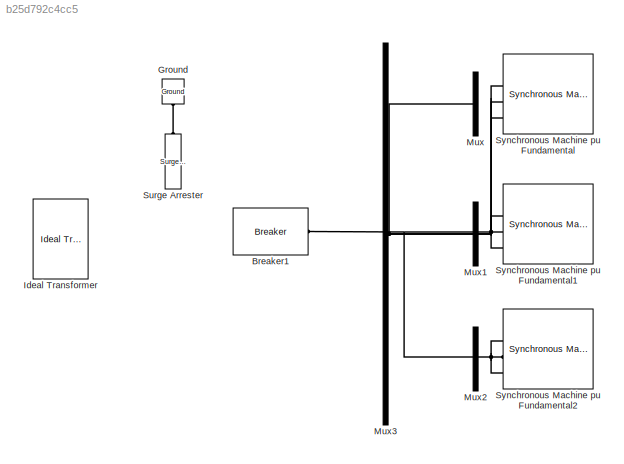
MODEL slx_b25d792c4cc5
KIND model
BLOCK [Reference] Breaker1  REF=powerlib/Elements/Breaker
  BreakerResistance = 0.01
  External = on
  InitialState = 0
  Measurements = None
  MoreParameters = off
  NoBreakLoop = off
  Ports = [1, 0, 0, 0, 0, 1, 1]
  SnubberCapacitance = inf
  SnubberResistance = 1e6
  SourceBlock = powerlib/Elements/Breaker
  SourceType = Breaker
  SwitchingTimes = [ 1/60  5/60 ]
BLOCK [Reference] Ground  REF=powerlib/Elements/Ground
  LConnTagsString = a
  Ports = [0, 0, 0, 0, 0, 1]
  SourceBlock = powerlib/Elements/Ground
  SourceType = Ground
BLOCK [Reference] Ideal Transformer  REF=fl_lib/Electrical/Electrical Elements/Ideal Transformer
  ClassName = ideal_transformer
  ComponentPath = foundation.electrical.elements.ideal_transformer
  ComponentVariantNames = ideal_transformer
  ComponentVariants = foundation.electrical.elements.ideal_transformer
  LocalVarDescs = |i1|v1|i2|v2
  LocalVarLogging = [0 0 0 0]
  LocalVarNames = |i1|v1|i2|v2
  Ports = [0, 0, 0, 0, 0, 2, 2]
  SchemaVersion = 1
  SourceBlock = fl_lib/Electrical/Electrical Elements/Ideal Transformer
  SourceFile = foundation.electrical.elements.ideal_transformer
  SourceType = Ideal Transformer
  i1_Log = off
  i2_Log = off
  n = 1
  n_unit = 1
  v1_Log = off
  v2_Log = off
BLOCK [Mux] Mux
  DisplayOption = bar
  Inputs = 3
  Ports = [3, 1]
BLOCK [Mux] Mux1
  DisplayOption = bar
  Inputs = 3
  Ports = [3, 1]
BLOCK [Mux] Mux2
  DisplayOption = bar
  Inputs = 3
  Ports = [3, 1]
BLOCK [Mux] Mux3
  DisplayOption = bar
  Inputs = 3
  Ports = [3, 1]
BLOCK [Reference] Surge Arrester  REF=powerlib/Elements/Surge Arrester
  BreakLoop = off
  Columns = 2
  Measurements = None
  MoreParameters = off
  Ports = [0, 0, 0, 0, 0, 1, 1]
  ProtectionVoltage = 500e+03
  ReferenceCurrent = 500
  Segment1 = [.955 50]
  Segment2 = [1.0 25]
  Segment3 = [.9915 16.5]
  SourceBlock = powerlib/Elements/Surge Arrester
  SourceType = Surge Arrester
BLOCK [Reference] Synchronous Machine pu Fundamental  REF=powerlib/Machines/Synchronous Machine
pu Fundamental
  BusType = PV
  Dampers1 = [ 1.17E-02  0.182  1.97E-02  0.384 ]
  Dampers2 = [0.0652, 0.5134, 0.0287, 0.2553, 7.765e-3, 0.9167 ]
  Field = [ 5.79E-04  0.114]
  InitialConditions = [ 0  0  0  0  0  0  0  0  1 ]
  IterativeModel = Trapezoidal non iterative
  LoadFlowParameters = [1,0,0,0,0]
  Mechanical = [ 3.7 0 20]
  MechanicalLoad = Mechanical power Pm
  NominalParameters = [ 187E6  13800   60]
  PLF = 0
  PolePairs = 20
  Ports = [2, 1, 0, 0, 0, 0, 3]
  Pref = 0
  PresetModel = No
  QLF = 0
  Qmax = inf
  Qmin = -inf
  Qref = 0
  RotorType = Salient-pole
  Saturation = [0.6404,0.7127,0.8441,0.9214,0.9956,1.082,1.19,1.316,1.457;0.7,0.7698,0.8872,0.9466,0.9969,1.046,1.1,1.151,1.201]
  SetSaturation = off
  ShowDetailedParameters = on
  SourceBlock = powerlib/Machines/Synchronous Machine\npu Fundamental
  SourceType = Synchronous Machine
  Stator = [ 2.85E-03  0.114  1.19  0.36 ]
  TsBlock = -1
  TsPowergui = 0
  Units = per unit fundamental parameters
BLOCK [Reference] Synchronous Machine pu Fundamental1  REF=powerlib/Machines/Synchronous Machine
pu Fundamental
  BusType = PV
  Dampers1 = [ 1.17E-02  0.182  1.97E-02  0.384 ]
  Dampers2 = [0.0652, 0.5134, 0.0287, 0.2553, 7.765e-3, 0.9167 ]
  Field = [ 5.79E-04  0.114]
  InitialConditions = [ 0  0  0  0  0  0  0  0  1 ]
  IterativeModel = Trapezoidal non iterative
  LoadFlowParameters = [1,0,0,0,0]
  Mechanical = [ 3.7 0 20]
  MechanicalLoad = Mechanical power Pm
  NominalParameters = [ 187E6  13800   60]
  PLF = 0
  PolePairs = 20
  Ports = [2, 1, 0, 0, 0, 0, 3]
  Pref = 0
  PresetModel = No
  QLF = 0
  Qmax = inf
  Qmin = -inf
  Qref = 0
  RotorType = Salient-pole
  Saturation = [0.6404,0.7127,0.8441,0.9214,0.9956,1.082,1.19,1.316,1.457;0.7,0.7698,0.8872,0.9466,0.9969,1.046,1.1,1.151,1.201]
  SetSaturation = off
  ShowDetailedParameters = on
  SourceBlock = powerlib/Machines/Synchronous Machine\npu Fundamental
  SourceType = Synchronous Machine
  Stator = [ 2.85E-03  0.114  1.19  0.36 ]
  TsBlock = -1
  TsPowergui = 0
  Units = per unit fundamental parameters
BLOCK [Reference] Synchronous Machine pu Fundamental2  REF=powerlib/Machines/Synchronous Machine
pu Fundamental
  BusType = PV
  Dampers1 = [ 1.17E-02  0.182  1.97E-02  0.384 ]
  Dampers2 = [0.0652, 0.5134, 0.0287, 0.2553, 7.765e-3, 0.9167 ]
  Field = [ 5.79E-04  0.114]
  InitialConditions = [ 0  0  0  0  0  0  0  0  1 ]
  IterativeModel = Trapezoidal non iterative
  LoadFlowParameters = [1,0,0,0,0]
  Mechanical = [ 3.7 0 20]
  MechanicalLoad = Mechanical power Pm
  NominalParameters = [ 187E6  13800   60]
  PLF = 0
  PolePairs = 20
  Ports = [2, 1, 0, 0, 0, 0, 3]
  Pref = 0
  PresetModel = No
  QLF = 0
  Qmax = inf
  Qmin = -inf
  Qref = 0
  RotorType = Salient-pole
  Saturation = [0.6404,0.7127,0.8441,0.9214,0.9956,1.082,1.19,1.316,1.457;0.7,0.7698,0.8872,0.9466,0.9969,1.046,1.1,1.151,1.201]
  SetSaturation = off
  ShowDetailedParameters = on
  SourceBlock = powerlib/Machines/Synchronous Machine\npu Fundamental
  SourceType = Synchronous Machine
  Stator = [ 2.85E-03  0.114  1.19  0.36 ]
  TsBlock = -1
  TsPowergui = 0
  Units = per unit fundamental parameters
PNET net1: Breaker1:RConn1 -- Synchronous Machine pu Fundamental1:RConn1 -- Synchronous Machine pu Fundamental1:RConn2 -- Synchronous Machine pu Fundamental1:RConn3 -- Synchronous Machine pu Fundamental2:RConn1 -- Synchronous Machine pu Fundamental2:RConn2 -- Synchronous Machine pu Fundamental2:RConn3 -- Synchronous Machine pu Fundamental:RConn1 -- Synchronous Machine pu Fundamental:RConn2 -- Synchronous Machine pu Fundamental:RConn3
PLINE Ground:LConn1 -- Surge Arrester:LConn1
note: PNET lines group multi-terminal physical nets as a canonical sorted terminal list (undirected conserving connections); 2-terminal nets keep the pairwise PLINE form
